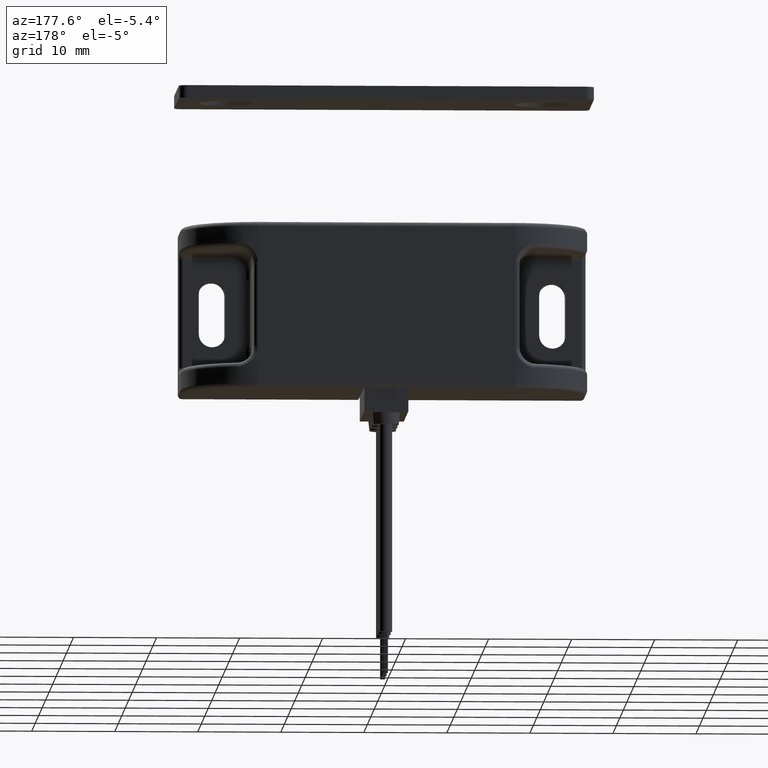
[diagram: clean part render]
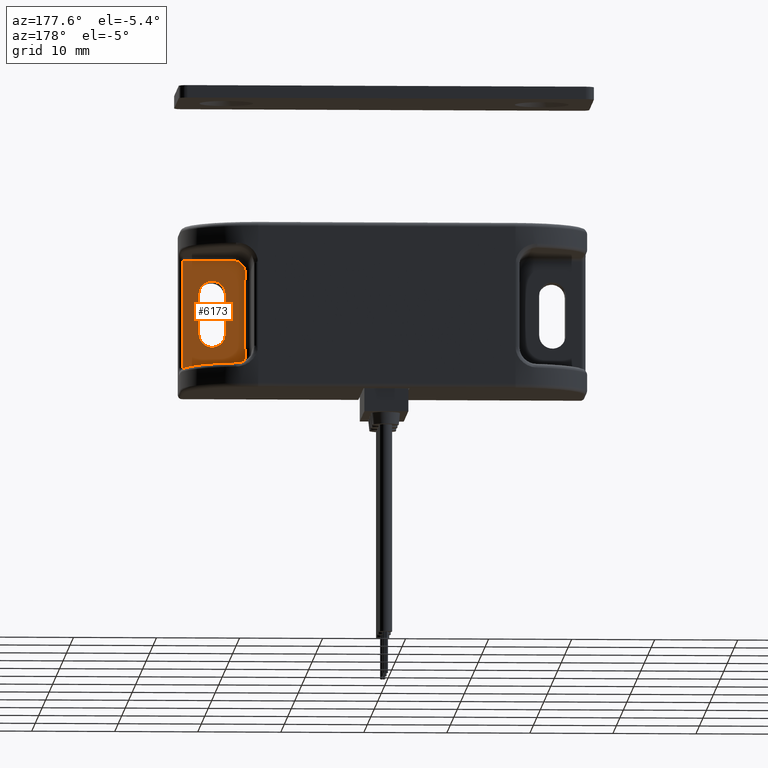
[diagram: same view with one face highlighted and labeled with its STEP entity id]
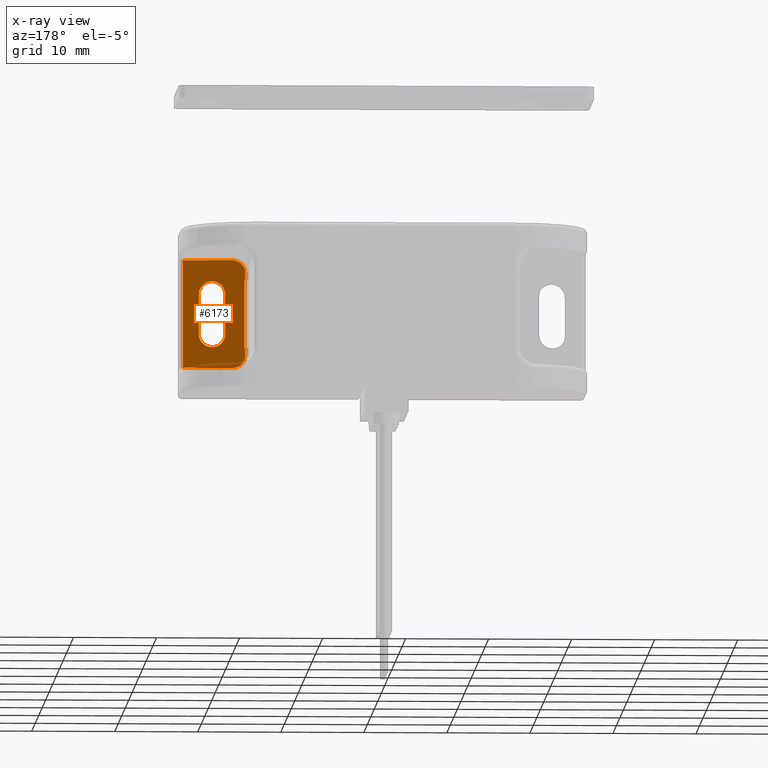
[diagram: x-ray of the same camera — body ghosted, the highlighted face saturated]
A machine part, auxiliary view. The second image highlights one B-rep face of the part: STEP entity #6173.
The next image is the same camera in x-ray: the body ghosted, the highlighted face saturated — about 4% of this face is hidden behind the body in this view.
In plain terms, the highlighted planar face has unit normal (0, -1, 0).
Its self-contained STEP definition (entity closure, byte-faithful):
#18 = DIRECTION ( 'NONE',  ( -5.102127870520014400E-017, 1.000000000000000000, 0.0000000000000000000 ) ) ;
#28 = DIRECTION ( 'NONE',  ( -1.000000000000000000, -0.0000000000000000000, -0.0000000000000000000 ) ) ;
#69 = DIRECTION ( 'NONE',  ( 5.102127870520014400E-017, -1.000000000000000000, 0.0000000000000000000 ) ) ;
#77 = CARTESIAN_POINT ( 'NONE',  ( 24.00000000000001100, 2.999999999999999100, -6.500000000000000900 ) ) ;
#99 = VECTOR ( 'NONE', #5414, 1000.000000000000000 ) ;
#133 = VECTOR ( 'NONE', #2198, 1000.000000000000000 ) ;
#153 = CARTESIAN_POINT ( 'NONE',  ( 16.60000000000000100, 2.999999999999998700, -4.099999999999999600 ) ) ;
#197 = CARTESIAN_POINT ( 'NONE',  ( 18.00000000000000400, 2.999999999999998700, -6.500000000000000900 ) ) ;
#250 = EDGE_CURVE ( 'NONE', #3505, #4790, #5635, .T. ) ;
#253 = LINE ( 'NONE', #3713, #6327 ) ;
#386 = CARTESIAN_POINT ( 'NONE',  ( 18.89999999999999500, 2.999999999999998700, -2.399999999999999500 ) ) ;
#411 = EDGE_CURVE ( 'NONE', #887, #2570, #5862, .T. ) ;
#495 = DIRECTION ( 'NONE',  ( 1.000000000000000000, 0.0000000000000000000, 0.0000000000000000000 ) ) ;
#515 = CARTESIAN_POINT ( 'NONE',  ( 16.00000000000000000, 2.999999999999998700, 4.099999999999999600 ) ) ;
#548 = CARTESIAN_POINT ( 'NONE',  ( 16.50000000000000000, 2.999999999999998700, 5.000000000000000000 ) ) ;
#552 = VERTEX_POINT ( 'NONE', #6529 ) ;
#584 = AXIS2_PLACEMENT_3D ( 'NONE', #2501, #5989, #2993 ) ;
#592 = CARTESIAN_POINT ( 'NONE',  ( 16.50000000000000000, 2.999999999999998700, -4.099999999999999600 ) ) ;
#596 = ORIENTED_EDGE ( 'NONE', *, *, #4542, .T. ) ;
#602 = CIRCLE ( 'NONE', #3621, 1.500000000000001300 ) ;
#623 = DIRECTION ( 'NONE',  ( 1.000000000000000000, 5.102127870520014400E-017, 0.0000000000000000000 ) ) ;
#649 = VERTEX_POINT ( 'NONE', #5955 ) ;
#685 = CARTESIAN_POINT ( 'NONE',  ( 24.00000000000001100, 2.999999999999999100, -7.000000000000000000 ) ) ;
#887 = VERTEX_POINT ( 'NONE', #5158 ) ;
#1000 = EDGE_CURVE ( 'NONE', #1641, #649, #3422, .T. ) ;
#1057 = LINE ( 'NONE', #2040, #6091 ) ;
#1078 = LINE ( 'NONE', #548, #6281 ) ;
#1131 = VECTOR ( 'NONE', #28, 1000.000000000000000 ) ;
#1152 = EDGE_CURVE ( 'NONE', #1505, #6209, #2648, .T. ) ;
#1334 = EDGE_CURVE ( 'NONE', #649, #2047, #6397, .T. ) ;
#1374 = DIRECTION ( 'NONE',  ( -5.102127870520014400E-017, 1.000000000000000000, 0.0000000000000000000 ) ) ;
#1443 = DIRECTION ( 'NONE',  ( 0.0000000000000000000, 0.0000000000000000000, 1.000000000000000000 ) ) ;
#1505 = VERTEX_POINT ( 'NONE', #153 ) ;
#1527 = VECTOR ( 'NONE', #1443, 1000.000000000000000 ) ;
#1561 = ORIENTED_EDGE ( 'NONE', *, *, #4714, .T. ) ;
#1641 = VERTEX_POINT ( 'NONE', #5333 ) ;
#1673 = CARTESIAN_POINT ( 'NONE',  ( 18.00000000000000400, 2.999999999999998700, -5.000000000000000000 ) ) ;
#1790 = CARTESIAN_POINT ( 'NONE',  ( 22.09999999999999400, 2.999999999999999100, -2.399999999999999500 ) ) ;
#1831 = ORIENTED_EDGE ( 'NONE', *, *, #5436, .T. ) ;
#2040 = CARTESIAN_POINT ( 'NONE',  ( 16.60000000000000100, 2.999999999999998700, -4.099999999999999600 ) ) ;
#2047 = VERTEX_POINT ( 'NONE', #3649 ) ;
#2198 = DIRECTION ( 'NONE',  ( -0.0000000000000000000, -0.0000000000000000000, -1.000000000000000000 ) ) ;
#2286 = CARTESIAN_POINT ( 'NONE',  ( 24.00000000000001100, 2.999999999999999100, 6.500000000000001800 ) ) ;
#2501 = CARTESIAN_POINT ( 'NONE',  ( 18.00000000000000400, 2.999999999999998700, 5.000000000000000000 ) ) ;
#2570 = VERTEX_POINT ( 'NONE', #4361 ) ;
#2648 = LINE ( 'NONE', #4621, #1131 ) ;
#2688 = EDGE_CURVE ( 'NONE', #2570, #552, #1078, .T. ) ;
#2834 = LINE ( 'NONE', #685, #133 ) ;
#2858 = EDGE_CURVE ( 'NONE', #4790, #5519, #2834, .T. ) ;
#2874 = FACE_OUTER_BOUND ( 'NONE', #4166, .T. ) ;
#2993 = DIRECTION ( 'NONE',  ( 1.000000000000000000, 0.0000000000000000000, 0.0000000000000000000 ) ) ;
#3018 = ORIENTED_EDGE ( 'NONE', *, *, #3246, .F. ) ;
#3038 = CARTESIAN_POINT ( 'NONE',  ( 20.49999999999999600, 2.999999999999998700, 2.399999999999999900 ) ) ;
#3039 = ORIENTED_EDGE ( 'NONE', *, *, #1000, .F. ) ;
#3180 = CARTESIAN_POINT ( 'NONE',  ( 24.50000000000001100, 2.999999999999999100, 6.500000000000001800 ) ) ;
#3222 = EDGE_CURVE ( 'NONE', #3664, #5275, #602, .T. ) ;
#3246 = EDGE_CURVE ( 'NONE', #4446, #1641, #4435, .T. ) ;
#3422 = LINE ( 'NONE', #1790, #5924 ) ;
#3477 = EDGE_LOOP ( 'NONE', ( #4560, #5881, #3039, #3018 ) ) ;
#3505 = VERTEX_POINT ( 'NONE', #6093 ) ;
#3524 = DIRECTION ( 'NONE',  ( -5.102127870520014400E-017, 1.000000000000000000, -0.0000000000000000000 ) ) ;
#3541 = DIRECTION ( 'NONE',  ( -1.000000000000000000, 0.0000000000000000000, 0.0000000000000000000 ) ) ;
#3590 = DIRECTION ( 'NONE',  ( 1.000000000000000000, 5.102127870520014400E-017, 0.0000000000000000000 ) ) ;
#3621 = AXIS2_PLACEMENT_3D ( 'NONE', #1673, #3524, #495 ) ;
#3649 = CARTESIAN_POINT ( 'NONE',  ( 18.89999999999999500, 2.999999999999998700, -2.400000000000000400 ) ) ;
#3663 = ORIENTED_EDGE ( 'NONE', *, *, #3222, .T. ) ;
#3664 = VERTEX_POINT ( 'NONE', #197 ) ;
#3713 = CARTESIAN_POINT ( 'NONE',  ( 18.00000000000000400, 2.999999999999998700, -6.500000000000000900 ) ) ;
#3867 = CARTESIAN_POINT ( 'NONE',  ( 18.89999999999999900, 2.999999999999998700, 2.399999999999999900 ) ) ;
#3950 = AXIS2_PLACEMENT_3D ( 'NONE', #3038, #18, #3541 ) ;
#4058 = EDGE_CURVE ( 'NONE', #1505, #887, #1057, .T. ) ;
#4078 = DIRECTION ( 'NONE',  ( 0.0000000000000000000, 0.0000000000000000000, 1.000000000000000000 ) ) ;
#4114 = LINE ( 'NONE', #386, #99 ) ;
#4135 = VECTOR ( 'NONE', #623, 1000.000000000000000 ) ;
#4166 = EDGE_LOOP ( 'NONE', ( #5611, #5417, #596, #5760, #4543, #1561, #3663, #1831, #6357, #5931 ) ) ;
#4361 = CARTESIAN_POINT ( 'NONE',  ( 16.50000000000000000, 2.999999999999998700, 4.099999999999999600 ) ) ;
#4435 = CIRCLE ( 'NONE', #3950, 1.599999999999997200 ) ;
#4446 = VERTEX_POINT ( 'NONE', #3867 ) ;
#4508 = VECTOR ( 'NONE', #4547, 1000.000000000000000 ) ;
#4542 = EDGE_CURVE ( 'NONE', #552, #3505, #4895, .T. ) ;
#4543 = ORIENTED_EDGE ( 'NONE', *, *, #2858, .T. ) ;
#4547 = DIRECTION ( 'NONE',  ( -1.000000000000000000, -0.0000000000000000000, -0.0000000000000000000 ) ) ;
#4560 = ORIENTED_EDGE ( 'NONE', *, *, #5947, .F. ) ;
#4621 = CARTESIAN_POINT ( 'NONE',  ( 16.00000000000000000, 2.999999999999998700, -4.099999999999999600 ) ) ;
#4709 = DIRECTION ( 'NONE',  ( -1.000000000000000000, -5.102127870520014400E-017, 0.0000000000000000000 ) ) ;
#4714 = EDGE_CURVE ( 'NONE', #5519, #3664, #253, .T. ) ;
#4790 = VERTEX_POINT ( 'NONE', #2286 ) ;
#4853 = DIRECTION ( 'NONE',  ( -1.000000000000000000, 0.0000000000000000000, 0.0000000000000000000 ) ) ;
#4895 = CIRCLE ( 'NONE', #584, 1.500000000000001300 ) ;
#4936 = AXIS2_PLACEMENT_3D ( 'NONE', #5915, #1374, #4853 ) ;
#5041 = DIRECTION ( 'NONE',  ( -0.0000000000000000000, -0.0000000000000000000, -1.000000000000000000 ) ) ;
#5158 = CARTESIAN_POINT ( 'NONE',  ( 16.60000000000000100, 2.999999999999998700, 4.099999999999999600 ) ) ;
#5259 = CARTESIAN_POINT ( 'NONE',  ( 16.50000000000000000, 2.999999999999998700, -5.000000000000000000 ) ) ;
#5275 = VERTEX_POINT ( 'NONE', #5259 ) ;
#5333 = CARTESIAN_POINT ( 'NONE',  ( 22.09999999999999400, 2.999999999999999100, 2.399999999999999000 ) ) ;
#5414 = DIRECTION ( 'NONE',  ( 0.0000000000000000000, 0.0000000000000000000, 1.000000000000000000 ) ) ;
#5417 = ORIENTED_EDGE ( 'NONE', *, *, #2688, .T. ) ;
#5436 = EDGE_CURVE ( 'NONE', #5275, #6209, #5525, .T. ) ;
#5519 = VERTEX_POINT ( 'NONE', #77 ) ;
#5525 = LINE ( 'NONE', #5919, #1527 ) ;
#5527 = FACE_BOUND ( 'NONE', #3477, .T. ) ;
#5594 = PLANE ( 'NONE',  #5903 ) ;
#5611 = ORIENTED_EDGE ( 'NONE', *, *, #411, .T. ) ;
#5635 = LINE ( 'NONE', #3180, #4135 ) ;
#5760 = ORIENTED_EDGE ( 'NONE', *, *, #250, .T. ) ;
#5862 = LINE ( 'NONE', #515, #4508 ) ;
#5881 = ORIENTED_EDGE ( 'NONE', *, *, #1334, .F. ) ;
#5903 = AXIS2_PLACEMENT_3D ( 'NONE', #6086, #69, #3590 ) ;
#5915 = CARTESIAN_POINT ( 'NONE',  ( 20.49999999999999600, 2.999999999999998700, -2.399999999999999500 ) ) ;
#5919 = CARTESIAN_POINT ( 'NONE',  ( 16.50000000000000000, 2.999999999999998700, -4.099999999999999600 ) ) ;
#5924 = VECTOR ( 'NONE', #5041, 1000.000000000000000 ) ;
#5931 = ORIENTED_EDGE ( 'NONE', *, *, #4058, .T. ) ;
#5947 = EDGE_CURVE ( 'NONE', #2047, #4446, #4114, .T. ) ;
#5955 = CARTESIAN_POINT ( 'NONE',  ( 22.09999999999999400, 2.999999999999999100, -2.399999999999999500 ) ) ;
#5989 = DIRECTION ( 'NONE',  ( -5.102127870520014400E-017, 1.000000000000000000, -0.0000000000000000000 ) ) ;
#6086 = CARTESIAN_POINT ( 'NONE',  ( 24.50000000000001100, 2.999999999999999100, -7.000000000000000000 ) ) ;
#6091 = VECTOR ( 'NONE', #6538, 1000.000000000000000 ) ;
#6093 = CARTESIAN_POINT ( 'NONE',  ( 18.00000000000000400, 2.999999999999998700, 6.500000000000001800 ) ) ;
#6173 = ADVANCED_FACE ( 'NONE', ( #2874, #5527 ), #5594, .F. ) ;
#6209 = VERTEX_POINT ( 'NONE', #592 ) ;
#6281 = VECTOR ( 'NONE', #4078, 1000.000000000000000 ) ;
#6327 = VECTOR ( 'NONE', #4709, 1000.000000000000000 ) ;
#6357 = ORIENTED_EDGE ( 'NONE', *, *, #1152, .F. ) ;
#6397 = CIRCLE ( 'NONE', #4936, 1.599999999999997200 ) ;
#6529 = CARTESIAN_POINT ( 'NONE',  ( 16.50000000000000000, 2.999999999999998700, 5.000000000000000000 ) ) ;
#6538 = DIRECTION ( 'NONE',  ( -0.0000000000000000000, -0.0000000000000000000, 1.000000000000000000 ) ) ;